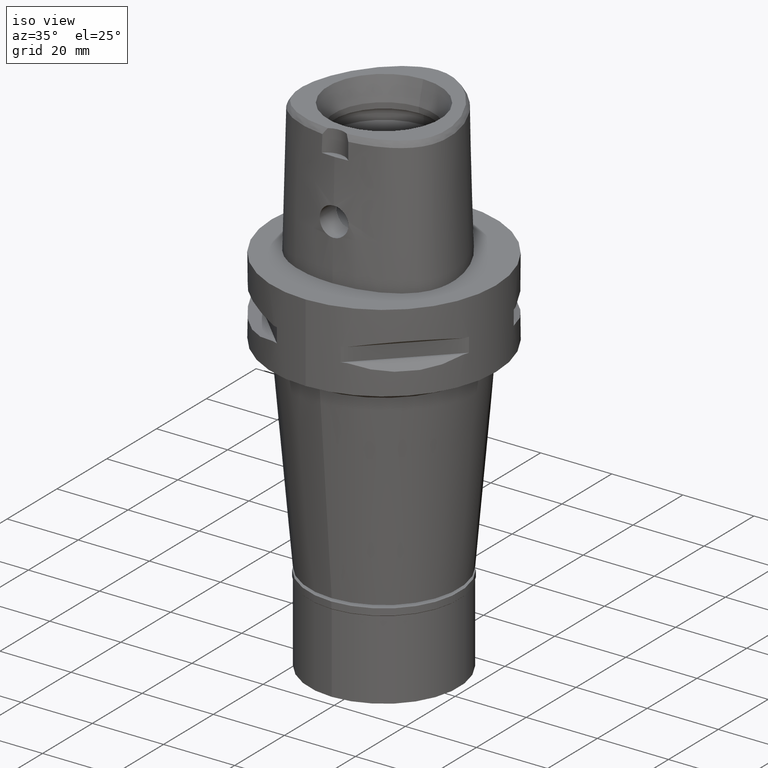
[diagram: clean part render]
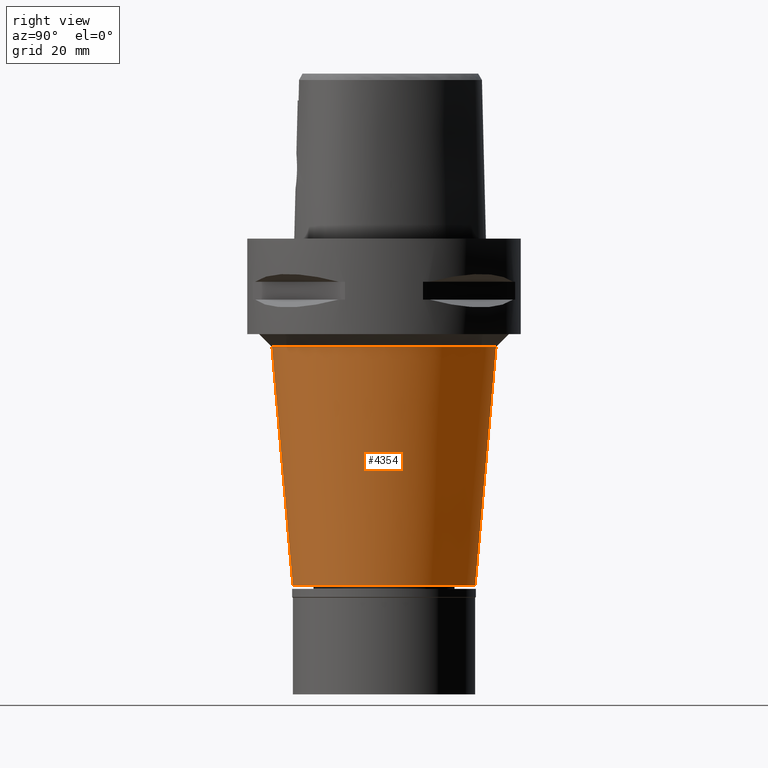
[diagram: tour spotlight — one face highlighted and labeled with its STEP entity id]
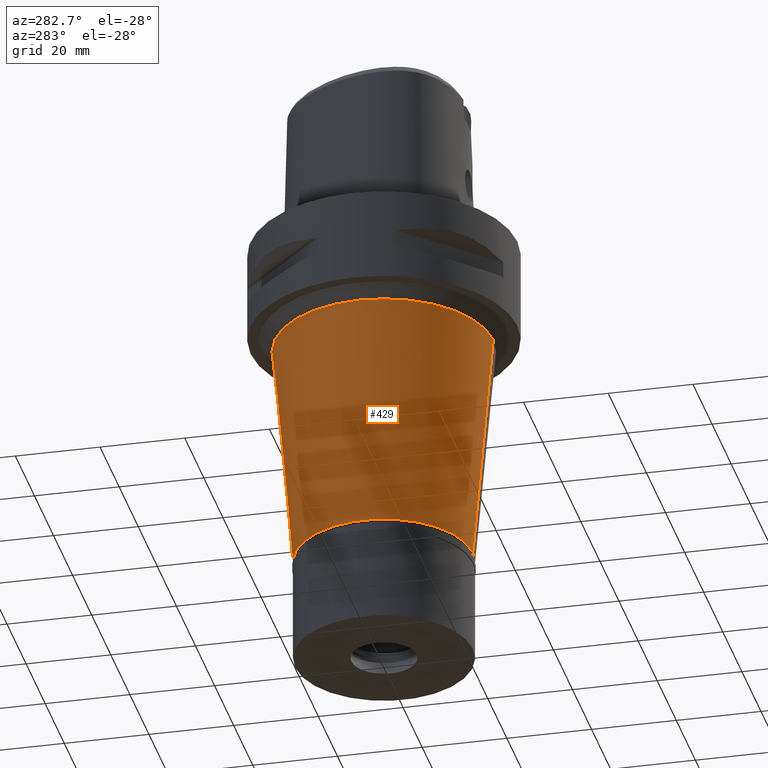
[diagram: tour spotlight — one face highlighted and labeled with its STEP entity id]
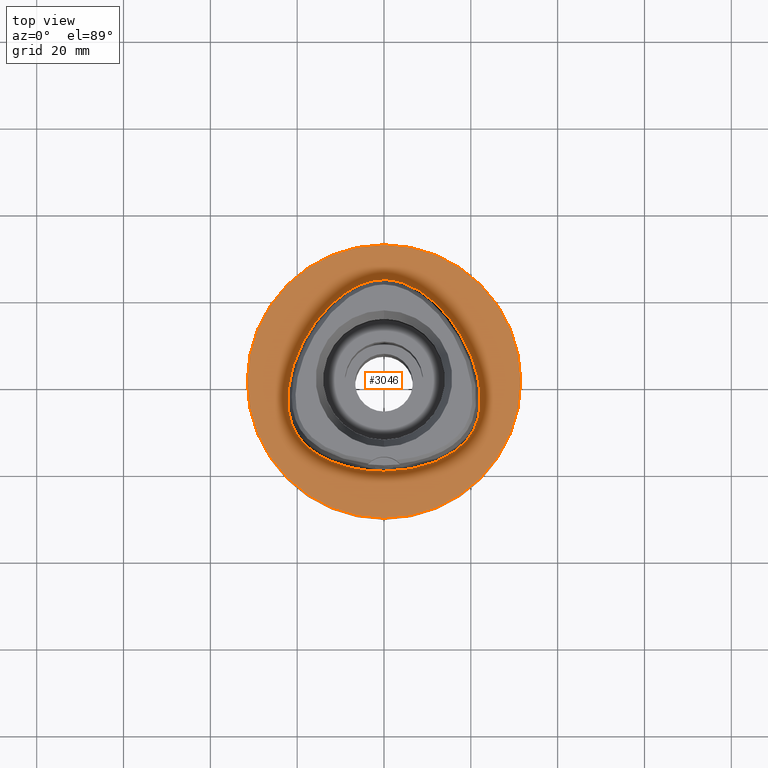
[diagram: tour spotlight — one face highlighted and labeled with its STEP entity id]
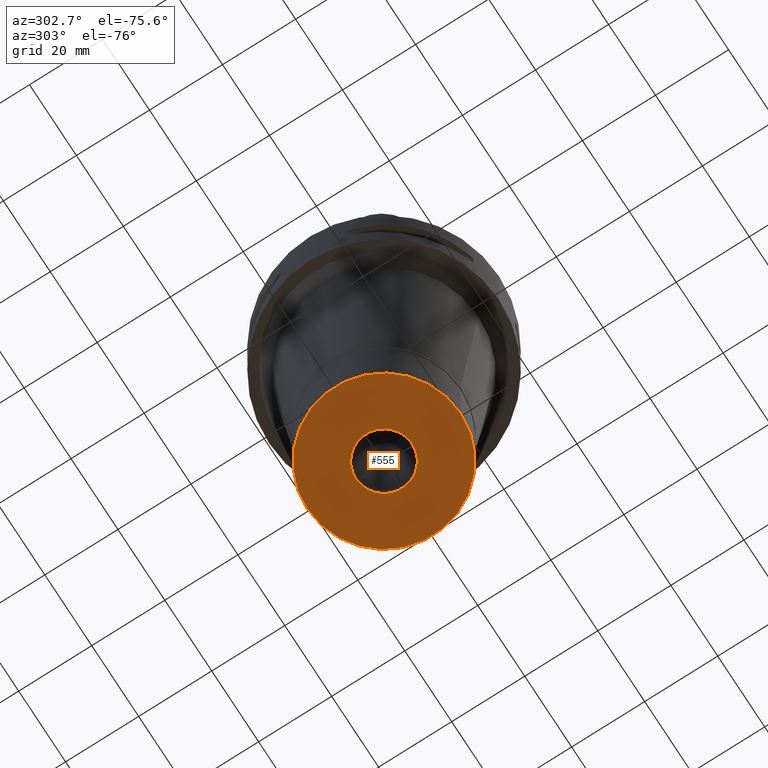
[diagram: tour spotlight — one face highlighted and labeled with its STEP entity id]
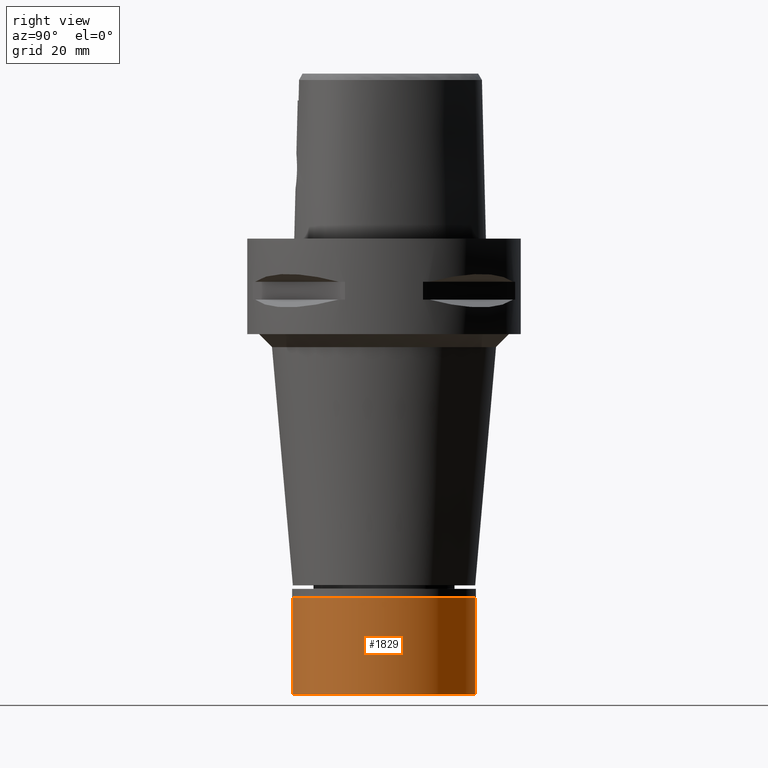
[diagram: tour spotlight — one face highlighted and labeled with its STEP entity id]
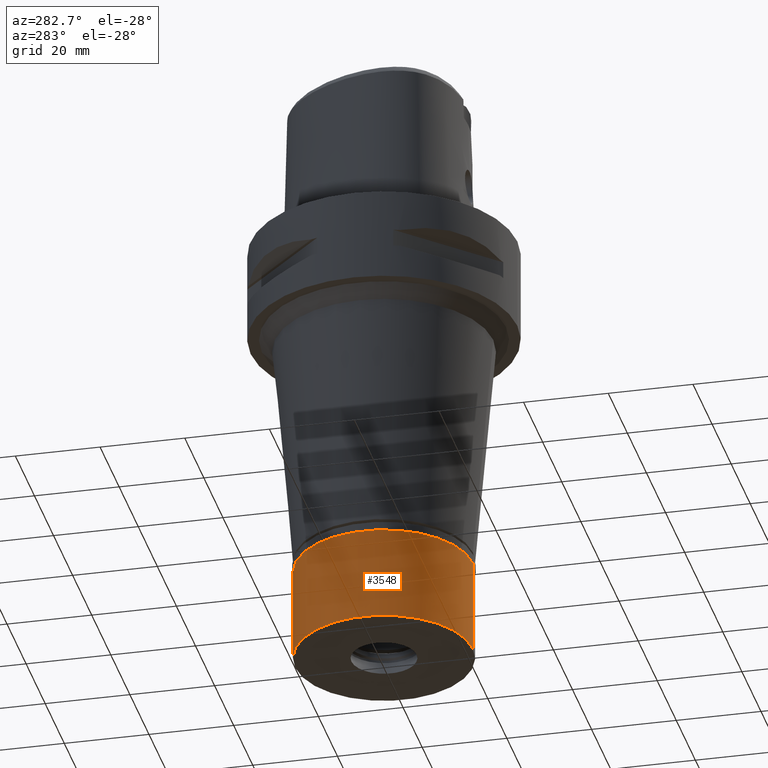
[diagram: tour spotlight — one face highlighted and labeled with its STEP entity id]
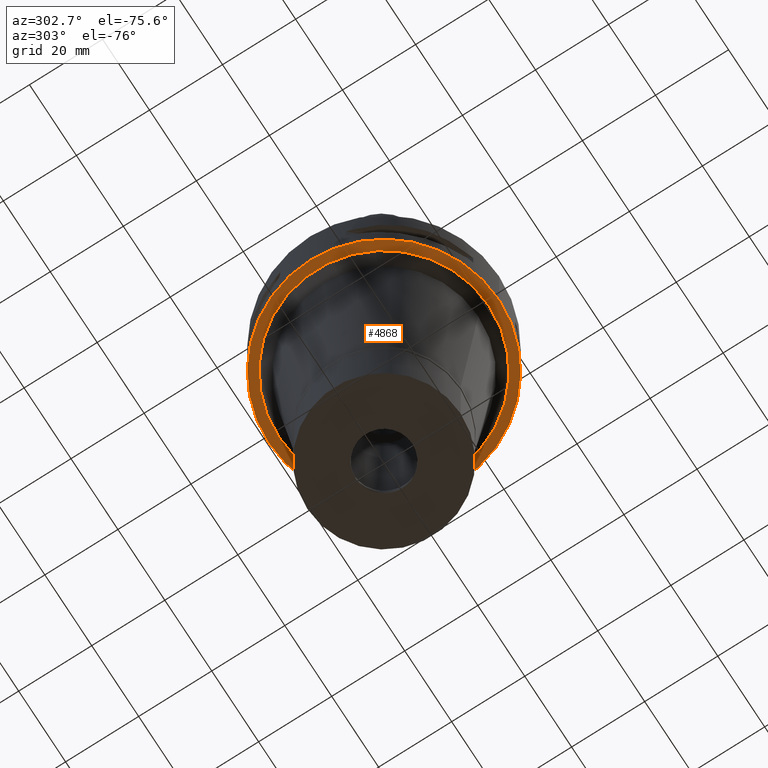
[diagram: tour spotlight — one face highlighted and labeled with its STEP entity id]
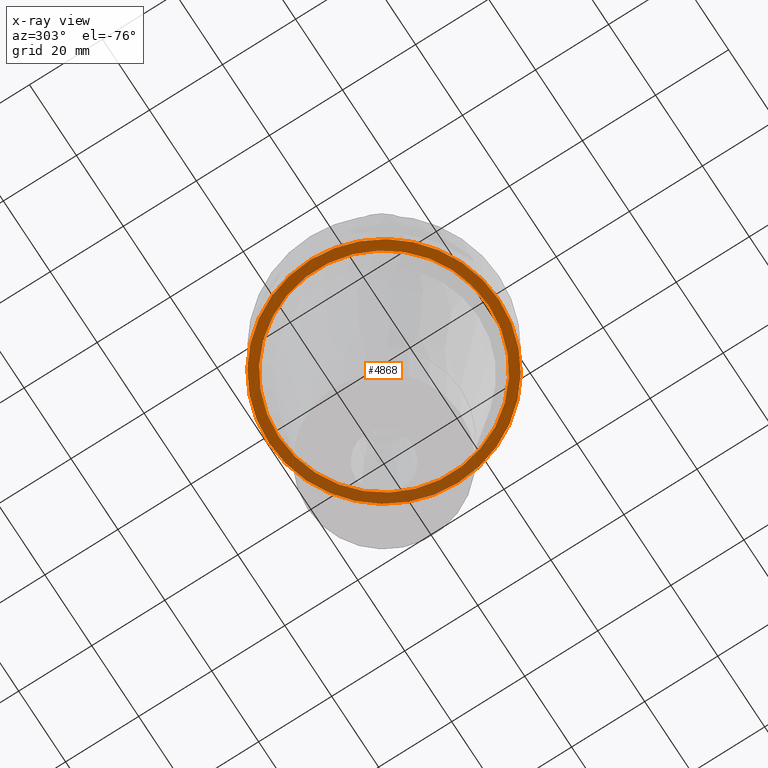
[diagram: x-ray of the same camera — body ghosted, this tour face saturated]
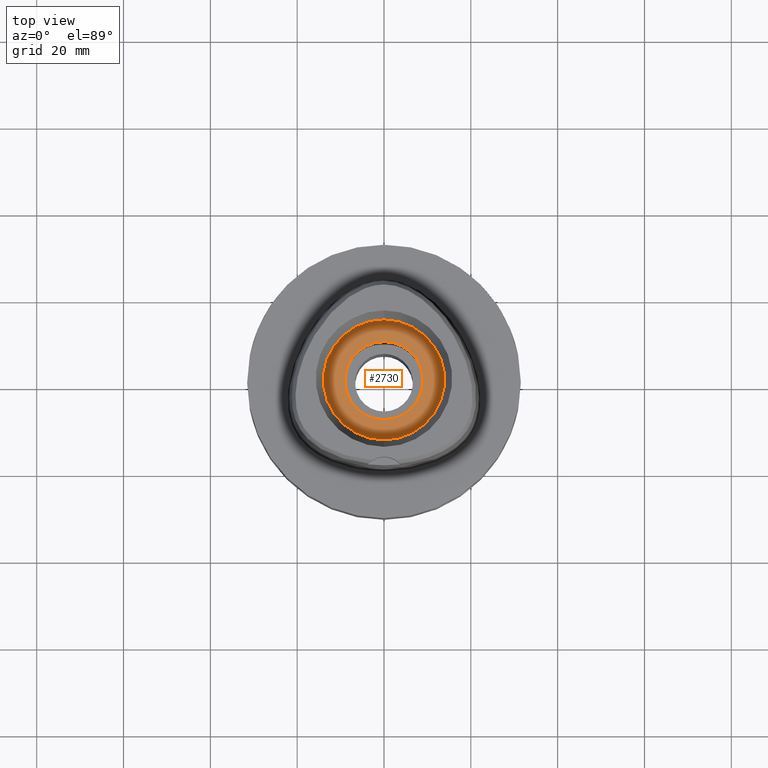
[diagram: tour spotlight — one face highlighted and labeled with its STEP entity id]
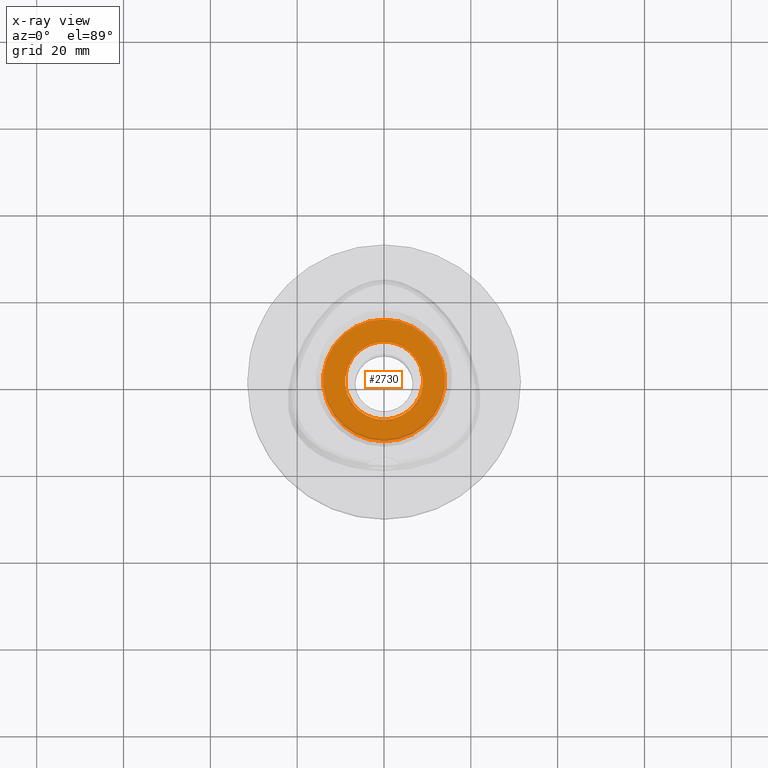
[diagram: x-ray of the same camera — body ghosted, this tour face saturated]
A machine part: a face-by-face anatomy tour. The part has 97 B-rep faces; the first image is the clean iso view, then the 8 largest visible faces are spotlighted one at a time (largest first), each with its STEP entity span.

Face 1 — right view, entity #4354. In plain terms, the highlighted conical surface has half-angle 5 deg.
Definition (entity closure, byte-faithful):
#162 = ORIENTED_EDGE ( 'NONE', *, *, #1592, .T. ) ;
#196 = DIRECTION ( 'NONE',  ( 0.0000000000000000000, 1.000000000000000000, 0.0000000000000000000 ) ) ;
#364 = ORIENTED_EDGE ( 'NONE', *, *, #973, .F. ) ;
#507 = LINE ( 'NONE', #2792, #2187 ) ;
#554 = EDGE_LOOP ( 'NONE', ( #4551, #3085, #162, #364 ) ) ;
#756 = LINE ( 'NONE', #842, #1857 ) ;
#758 = VERTEX_POINT ( 'NONE', #1597 ) ;
#842 = CARTESIAN_POINT ( 'NONE',  ( 0.0000000000000000000, -25.80312762756999945, -25.00000000000000000 ) ) ;
#903 = EDGE_CURVE ( 'NONE', #1946, #1959, #756, .T. ) ;
#973 = EDGE_CURVE ( 'NONE', #4078, #758, #507, .T. ) ;
#1592 = EDGE_CURVE ( 'NONE', #1959, #758, #2961, .T. ) ;
#1597 = CARTESIAN_POINT ( 'NONE',  ( 0.0000000000000000000, 21.00000000000000000, -79.90000000000000568 ) ) ;
#1857 = VECTOR ( 'NONE', #3156, 1000.000000000000000 ) ;
#1946 = VERTEX_POINT ( 'NONE', #4480 ) ;
#1959 = VERTEX_POINT ( 'NONE', #2958 ) ;
#2187 = VECTOR ( 'NONE', #3182, 1000.000000000000000 ) ;
#2266 = DIRECTION ( 'NONE',  ( 0.0000000000000000000, 0.0000000000000000000, 1.000000000000000000 ) ) ;
#2310 = DIRECTION ( 'NONE',  ( 0.0000000000000000000, -1.000000000000000000, 0.0000000000000000000 ) ) ;
#2458 = CARTESIAN_POINT ( 'NONE',  ( 0.0000000000000000000, 25.80312762756999945, -25.00000000000000000 ) ) ;
#2640 = DIRECTION ( 'NONE',  ( 0.0000000000000000000, -1.000000000000000000, 0.0000000000000000000 ) ) ;
#2670 = CARTESIAN_POINT ( 'NONE',  ( 0.0000000000000000000, 0.0000000000000000000, -79.90000000000000568 ) ) ;
#2792 = CARTESIAN_POINT ( 'NONE',  ( 0.0000000000000000000, 25.80312762756999945, -25.00000000000000000 ) ) ;
#2836 = AXIS2_PLACEMENT_3D ( 'NONE', #3727, #3752, #196 ) ;
#2958 = CARTESIAN_POINT ( 'NONE',  ( 0.0000000000000000000, -21.00000000000000000, -79.90000000000000568 ) ) ;
#2961 = CIRCLE ( 'NONE', #4734, 21.00000000000000000 ) ;
#3085 = ORIENTED_EDGE ( 'NONE', *, *, #903, .T. ) ;
#3156 = DIRECTION ( 'NONE',  ( 0.0000000000000000000, 0.08715574274762423468, -0.9961946980917484318 ) ) ;
#3182 = DIRECTION ( 'NONE',  ( 0.0000000000000000000, -0.08715574274762423468, -0.9961946980917484318 ) ) ;
#3280 = FACE_OUTER_BOUND ( 'NONE', #554, .T. ) ;
#3340 = EDGE_CURVE ( 'NONE', #1946, #4078, #4949, .T. ) ;
#3727 = CARTESIAN_POINT ( 'NONE',  ( 0.0000000000000000000, 0.0000000000000000000, -52.44999999999999574 ) ) ;
#3752 = DIRECTION ( 'NONE',  ( 0.0000000000000000000, 0.0000000000000000000, 1.000000000000000000 ) ) ;
#4076 = CARTESIAN_POINT ( 'NONE',  ( 0.0000000000000000000, 0.0000000000000000000, -25.00000000000000000 ) ) ;
#4078 = VERTEX_POINT ( 'NONE', #2458 ) ;
#4354 = ADVANCED_FACE ( 'NONE', ( #3280 ), #4604, .T. ) ;
#4480 = CARTESIAN_POINT ( 'NONE',  ( 0.0000000000000000000, -25.80312762756999945, -25.00000000000000000 ) ) ;
#4551 = ORIENTED_EDGE ( 'NONE', *, *, #3340, .F. ) ;
#4554 = DIRECTION ( 'NONE',  ( 0.0000000000000000000, 0.0000000000000000000, 1.000000000000000000 ) ) ;
#4604 = CONICAL_SURFACE ( 'NONE', #2836, 23.40156381379000194, 0.08726646259969973729 ) ;
#4734 = AXIS2_PLACEMENT_3D ( 'NONE', #2670, #2266, #2310 ) ;
#4874 = AXIS2_PLACEMENT_3D ( 'NONE', #4076, #4554, #2640 ) ;
#4949 = CIRCLE ( 'NONE', #4874, 25.80312762758000034 ) ;

Face 2 — auxiliary view, entity #429. In plain terms, the highlighted conical surface has half-angle 5 deg.
Definition (entity closure, byte-faithful):
#139 = AXIS2_PLACEMENT_3D ( 'NONE', #1388, #1761, #4853 ) ;
#429 = ADVANCED_FACE ( 'NONE', ( #2772 ), #2973, .T. ) ;
#507 = LINE ( 'NONE', #2792, #2187 ) ;
#756 = LINE ( 'NONE', #842, #1857 ) ;
#758 = VERTEX_POINT ( 'NONE', #1597 ) ;
#784 = AXIS2_PLACEMENT_3D ( 'NONE', #1532, #4705, #3846 ) ;
#842 = CARTESIAN_POINT ( 'NONE',  ( 0.0000000000000000000, -25.80312762756999945, -25.00000000000000000 ) ) ;
#903 = EDGE_CURVE ( 'NONE', #1946, #1959, #756, .T. ) ;
#973 = EDGE_CURVE ( 'NONE', #4078, #758, #507, .T. ) ;
#1267 = ORIENTED_EDGE ( 'NONE', *, *, #3275, .T. ) ;
#1388 = CARTESIAN_POINT ( 'NONE',  ( 0.0000000000000000000, 0.0000000000000000000, -25.00000000000000000 ) ) ;
#1501 = EDGE_CURVE ( 'NONE', #1946, #4078, #4500, .T. ) ;
#1515 = ORIENTED_EDGE ( 'NONE', *, *, #903, .F. ) ;
#1532 = CARTESIAN_POINT ( 'NONE',  ( 0.0000000000000000000, 0.0000000000000000000, -52.44999999999999574 ) ) ;
#1597 = CARTESIAN_POINT ( 'NONE',  ( 0.0000000000000000000, 21.00000000000000000, -79.90000000000000568 ) ) ;
#1761 = DIRECTION ( 'NONE',  ( 0.0000000000000000000, 0.0000000000000000000, -1.000000000000000000 ) ) ;
#1857 = VECTOR ( 'NONE', #3156, 1000.000000000000000 ) ;
#1946 = VERTEX_POINT ( 'NONE', #4480 ) ;
#1959 = VERTEX_POINT ( 'NONE', #2958 ) ;
#2187 = VECTOR ( 'NONE', #3182, 1000.000000000000000 ) ;
#2458 = CARTESIAN_POINT ( 'NONE',  ( 0.0000000000000000000, 25.80312762756999945, -25.00000000000000000 ) ) ;
#2479 = CIRCLE ( 'NONE', #3599, 21.00000000000000000 ) ;
#2772 = FACE_OUTER_BOUND ( 'NONE', #4414, .T. ) ;
#2792 = CARTESIAN_POINT ( 'NONE',  ( 0.0000000000000000000, 25.80312762756999945, -25.00000000000000000 ) ) ;
#2958 = CARTESIAN_POINT ( 'NONE',  ( 0.0000000000000000000, -21.00000000000000000, -79.90000000000000568 ) ) ;
#2973 = CONICAL_SURFACE ( 'NONE', #784, 23.40156381379000194, 0.08726646259969973729 ) ;
#3156 = DIRECTION ( 'NONE',  ( 0.0000000000000000000, 0.08715574274762423468, -0.9961946980917484318 ) ) ;
#3182 = DIRECTION ( 'NONE',  ( 0.0000000000000000000, -0.08715574274762423468, -0.9961946980917484318 ) ) ;
#3275 = EDGE_CURVE ( 'NONE', #758, #1959, #2479, .T. ) ;
#3321 = CARTESIAN_POINT ( 'NONE',  ( 0.0000000000000000000, 0.0000000000000000000, -79.90000000000000568 ) ) ;
#3524 = ORIENTED_EDGE ( 'NONE', *, *, #1501, .T. ) ;
#3599 = AXIS2_PLACEMENT_3D ( 'NONE', #3321, #3764, #4940 ) ;
#3724 = ORIENTED_EDGE ( 'NONE', *, *, #973, .T. ) ;
#3764 = DIRECTION ( 'NONE',  ( 0.0000000000000000000, 0.0000000000000000000, 1.000000000000000000 ) ) ;
#3846 = DIRECTION ( 'NONE',  ( 0.0000000000000000000, 1.000000000000000000, 0.0000000000000000000 ) ) ;
#4078 = VERTEX_POINT ( 'NONE', #2458 ) ;
#4414 = EDGE_LOOP ( 'NONE', ( #1267, #1515, #3524, #3724 ) ) ;
#4480 = CARTESIAN_POINT ( 'NONE',  ( 0.0000000000000000000, -25.80312762756999945, -25.00000000000000000 ) ) ;
#4500 = CIRCLE ( 'NONE', #139, 25.80312762756999945 ) ;
#4705 = DIRECTION ( 'NONE',  ( 0.0000000000000000000, 0.0000000000000000000, 1.000000000000000000 ) ) ;
#4853 = DIRECTION ( 'NONE',  ( 0.0000000000000000000, -1.000000000000000000, 0.0000000000000000000 ) ) ;
#4940 = DIRECTION ( 'NONE',  ( 0.0000000000000000000, 1.000000000000000000, 0.0000000000000000000 ) ) ;

Face 3 — top view, entity #3046. In plain terms, the highlighted planar face has unit normal (0, 0, -1).
Definition (entity closure, byte-faithful):
#9 = VERTEX_POINT ( 'NONE', #4185 ) ;
#29 = CARTESIAN_POINT ( 'NONE',  ( 22.05732876008676868, -6.847636721172932539, -6.785209974175671066E-07 ) ) ;
#56 = CARTESIAN_POINT ( 'NONE',  ( 5.098437023615106867, 22.52602540643902884, -6.785209974175671066E-07 ) ) ;
#131 = VERTEX_POINT ( 'NONE', #4362 ) ;
#132 = CARTESIAN_POINT ( 'NONE',  ( 19.64947367238386633, -12.82525391623904731, -6.785209974175671066E-07 ) ) ;
#136 = EDGE_LOOP ( 'NONE', ( #456, #2271 ) ) ;
#279 = CIRCLE ( 'NONE', #2231, 31.50000000000000000 ) ;
#311 = CARTESIAN_POINT ( 'NONE',  ( -5.098437017462684295, 22.52602539107448010, -1.923528933247924122E-08 ) ) ;
#401 = CARTESIAN_POINT ( 'NONE',  ( -1.042620435539000038E-11, -20.67499999999999716, 1.260843281632999955E-13 ) ) ;
#413 = CARTESIAN_POINT ( 'NONE',  ( -1.042620435539000038E-11, -20.67499999999999716, 1.260843281632999955E-13 ) ) ;
#456 = ORIENTED_EDGE ( 'NONE', *, *, #3170, .F. ) ;
#468 = CARTESIAN_POINT ( 'NONE',  ( 5.537052861617000444E-11, 23.47499999999000053, 1.231977482991999938E-13 ) ) ;
#646 = FACE_BOUND ( 'NONE', #2500, .T. ) ;
#670 = PLANE ( 'NONE',  #2068 ) ;
#695 = CARTESIAN_POINT ( 'NONE',  ( 5.537052861617000444E-11, 23.47499999999000053, 1.231977482991999938E-13 ) ) ;
#833 = CARTESIAN_POINT ( 'NONE',  ( -21.55524826055177101, -8.996025390762291352, -1.923528933247924122E-08 ) ) ;
#844 = CARTESIAN_POINT ( 'NONE',  ( 20.93173253763973918, -10.60431641315681617, -6.785209974175671066E-07 ) ) ;
#1037 = DIRECTION ( 'NONE',  ( 0.0000000000000000000, -1.000000000000000000, 0.0000000000000000000 ) ) ;
#1083 = CARTESIAN_POINT ( 'NONE',  ( -14.40795638994774031, 15.64093750030547447, -1.923528933247924122E-08 ) ) ;
#1159 = CARTESIAN_POINT ( 'NONE',  ( -11.23259756744138116, -18.89324218795826837, -1.923528933247924122E-08 ) ) ;
#1303 = CARTESIAN_POINT ( 'NONE',  ( 18.06826690003115488, 10.43171875852642039, -6.785209974175671066E-07 ) ) ;
#1488 = CARTESIAN_POINT ( 'NONE',  ( -21.97832647834017550, -0.2810937499159023023, -1.923528933247924122E-08 ) ) ;
#1608 = CARTESIAN_POINT ( 'NONE',  ( 2.564517730442541499, 23.29328126670213805, -6.785209974175671066E-07 ) ) ;
#1635 = CARTESIAN_POINT ( 'NONE',  ( 7.571159442944739304, 21.31457032718531863, -6.785209974175671066E-07 ) ) ;
#1687 = CARTESIAN_POINT ( 'NONE',  ( 2.113823674074862602, -20.67500001696187439, -6.785209974175671066E-07 ) ) ;
#1801 = EDGE_CURVE ( 'NONE', #131, #4152, #3026, .T. ) ;
#1807 = CARTESIAN_POINT ( 'NONE',  ( 0.0000000000000000000, 31.50000000000000000, 0.0000000000000000000 ) ) ;
#1869 = CARTESIAN_POINT ( 'NONE',  ( -18.06826688568393280, 10.43171875024030015, -1.923528933247924122E-08 ) ) ;
#1894 = VERTEX_POINT ( 'NONE', #1807 ) ;
#2008 = CARTESIAN_POINT ( 'NONE',  ( 6.341471022225618981, -20.29812501679269943, -6.785209974175672125E-07 ) ) ;
#2040 = CARTESIAN_POINT ( 'NONE',  ( 20.74942742484284253, 4.657187505782932391, -6.785209974175671066E-07 ) ) ;
#2044 = ORIENTED_EDGE ( 'NONE', *, *, #1801, .F. ) ;
#2068 = AXIS2_PLACEMENT_3D ( 'NONE', #2200, #3726, #4043 ) ;
#2200 = CARTESIAN_POINT ( 'NONE',  ( 0.0000000000000000000, 1.224646799146999965E-14, 0.0000000000000000000 ) ) ;
#2225 = DIRECTION ( 'NONE',  ( 0.0000000000000000000, 0.0000000000000000000, -1.000000000000000000 ) ) ;
#2231 = AXIS2_PLACEMENT_3D ( 'NONE', #4179, #3847, #3420 ) ;
#2245 = CARTESIAN_POINT ( 'NONE',  ( -0.8548392423346261593, 23.47500000048537672, -1.923528933247924122E-08 ) ) ;
#2271 = ORIENTED_EDGE ( 'NONE', *, *, #4722, .F. ) ;
#2362 = CARTESIAN_POINT ( 'NONE',  ( 11.23259757310570883, -18.89324220352508021, -6.785209974175671066E-07 ) ) ;
#2418 = CARTESIAN_POINT ( 'NONE',  ( 10.74572892155648418, 19.17433595056201412, -6.785209974175671066E-07 ) ) ;
#2448 = CARTESIAN_POINT ( 'NONE',  ( 18.56841066377555904, -14.16937989451306201, -6.785209974175671066E-07 ) ) ;
#2500 = EDGE_LOOP ( 'NONE', ( #3119, #2044 ) ) ;
#2627 = CARTESIAN_POINT ( 'NONE',  ( -22.24453907902907801, -4.100468749996694307, -1.923528933247924122E-08 ) ) ;
#2758 = CARTESIAN_POINT ( 'NONE',  ( -2.113823673093066180, -20.67500000048298148, -1.923528933247924122E-08 ) ) ;
#2975 = CARTESIAN_POINT ( 'NONE',  ( 0.0000000000000000000, 1.284348330606000068E-14, 0.0000000000000000000 ) ) ;
#3026 = B_SPLINE_CURVE_WITH_KNOTS ( 'NONE', 3,
 ( #401, #1687, #2008, #2362, #3103, #4653, #2448, #132, #3130, #844, #3185, #29, #3903, #4353, #2040, #1303, #3517, #2418, #1635, #56, #1608, #3542, #4756 ),
 .UNSPECIFIED., .F., .F.,
 ( 4, 1, 1, 1, 1, 1, 1, 1, 1, 1, 1, 1, 1, 1, 1, 1, 1, 1, 1, 1, 4 ),
 ( 0.0000000000000000000, 0.08333333333343000138, 0.1666666666668000230, 0.2083333333333000081, 0.2500000000000000000, 0.2916666666666999919, 0.3125000000000000000, 0.3333333333333000081, 0.3541666666666999919, 0.3750000000000000000, 0.4166666666666000163, 0.4583333333332000326, 0.4999999999998999689, 0.5833333333332000326, 0.6666666666664999852, 0.7499999999998000488, 0.8333333333329999704, 0.8749999999997000177, 0.9166666666664000651, 0.9583333333329999704, 1.000000000000000000 ),
 .UNSPECIFIED. ) ;
#3044 = CARTESIAN_POINT ( 'NONE',  ( -19.64947365903293175, -12.82525390652701169, -1.923528933247924122E-08 ) ) ;
#3046 = ADVANCED_FACE ( 'NONE', ( #4108, #646 ), #670, .F. ) ;
#3103 = CARTESIAN_POINT ( 'NONE',  ( 14.67337965261984856, -17.21410157728029944, -6.785209974175671066E-07 ) ) ;
#3119 = ORIENTED_EDGE ( 'NONE', *, *, #4458, .F. ) ;
#3130 = CARTESIAN_POINT ( 'NONE',  ( 20.34961800028912293, -11.74885743036716335, -6.785209974175671066E-07 ) ) ;
#3170 = EDGE_CURVE ( 'NONE', #1894, #9, #279, .T. ) ;
#3185 = CARTESIAN_POINT ( 'NONE',  ( 21.55524827641113461, -8.996025395474692488, -6.785209974175671066E-07 ) ) ;
#3401 = CARTESIAN_POINT ( 'NONE',  ( -20.74942740924745621, 4.657187500164402749, -1.923528933247924122E-08 ) ) ;
#3420 = DIRECTION ( 'NONE',  ( 0.0000000000000000000, 1.000000000000000000, 0.0000000000000000000 ) ) ;
#3432 = CARTESIAN_POINT ( 'NONE',  ( -20.34961798598837390, -11.74885742210780570, -1.923528933247924122E-08 ) ) ;
#3517 = CARTESIAN_POINT ( 'NONE',  ( 14.40795640261600497, 15.64093751101231966, -6.785209974175671066E-07 ) ) ;
#3542 = CARTESIAN_POINT ( 'NONE',  ( 0.8548392435103955300, 23.47500001696676719, -6.785209974175671066E-07 ) ) ;
#3726 = DIRECTION ( 'NONE',  ( 0.0000000000000000000, 0.0000000000000000000, -1.000000000000000000 ) ) ;
#3775 = CARTESIAN_POINT ( 'NONE',  ( -2.564517727055826590, 23.29328125047005571, -1.923528933247924122E-08 ) ) ;
#3847 = DIRECTION ( 'NONE',  ( 0.0000000000000000000, 0.0000000000000000000, -1.000000000000000000 ) ) ;
#3903 = CARTESIAN_POINT ( 'NONE',  ( 22.24453909555905895, -4.100468749900335830, -6.785209974175671066E-07 ) ) ;
#4043 = DIRECTION ( 'NONE',  ( 0.0000000000000000000, -1.000000000000000000, 0.0000000000000000000 ) ) ;
#4108 = FACE_OUTER_BOUND ( 'NONE', #136, .T. ) ;
#4152 = VERTEX_POINT ( 'NONE', #468 ) ;
#4156 = CARTESIAN_POINT ( 'NONE',  ( -10.74572891090726934, 19.17433593786605073, -1.923528933247924122E-08 ) ) ;
#4179 = CARTESIAN_POINT ( 'NONE',  ( 0.0000000000000000000, 1.284348330606000068E-14, 0.0000000000000000000 ) ) ;
#4185 = CARTESIAN_POINT ( 'NONE',  ( 0.0000000000000000000, -31.50000000000000000, 0.0000000000000000000 ) ) ;
#4190 = CARTESIAN_POINT ( 'NONE',  ( -18.56841065177361472, -14.16937988314586683, -1.923528933247924122E-08 ) ) ;
#4237 = CARTESIAN_POINT ( 'NONE',  ( -6.341471019296806233, -20.29812500048504731, -1.923528933247924122E-08 ) ) ;
#4274 = CIRCLE ( 'NONE', #4987, 31.50000000000000000 ) ;
#4289 = CARTESIAN_POINT ( 'NONE',  ( -20.93173252255332883, -10.60431640645471951, -1.923528933247924122E-08 ) ) ;
#4353 = CARTESIAN_POINT ( 'NONE',  ( 21.97832649466312915, -0.2810937470323582321, -6.785209974175671066E-07 ) ) ;
#4362 = CARTESIAN_POINT ( 'NONE',  ( -1.042620435539000038E-11, -20.67499999999999716, 1.260843281632999955E-13 ) ) ;
#4458 = EDGE_CURVE ( 'NONE', #4152, #131, #4799, .T. ) ;
#4538 = CARTESIAN_POINT ( 'NONE',  ( -7.571159434594514792, 21.31457031291555282, -1.923528933247924122E-08 ) ) ;
#4573 = CARTESIAN_POINT ( 'NONE',  ( -14.67337964443546205, -17.21410156292203553, -1.923528933247924122E-08 ) ) ;
#4653 = CARTESIAN_POINT ( 'NONE',  ( 16.95889173646760284, -15.67838868527016771, -6.785209974175671066E-07 ) ) ;
#4722 = EDGE_CURVE ( 'NONE', #9, #1894, #4274, .T. ) ;
#4756 = CARTESIAN_POINT ( 'NONE',  ( 5.537052861617000444E-11, 23.47499999999000053, 1.231977482991999938E-13 ) ) ;
#4799 = B_SPLINE_CURVE_WITH_KNOTS ( 'NONE', 3,
 ( #695, #2245, #3775, #311, #4538, #4156, #1083, #1869, #3401, #1488, #2627, #4928, #833, #4289, #3432, #3044, #4190, #4959, #4573, #1159, #4237, #2758, #413 ),
 .UNSPECIFIED., .F., .F.,
 ( 4, 1, 1, 1, 1, 1, 1, 1, 1, 1, 1, 1, 1, 1, 1, 1, 1, 1, 1, 1, 4 ),
 ( 0.0000000000000000000, 0.04166666666751999565, 0.08333333333413001087, 0.1250000000007999990, 0.1666666666674000152, 0.2500000000006000200, 0.3333333333337999971, 0.4166666666671000052, 0.5000000000002999823, 0.5416666666670000296, 0.5833333333335000148, 0.6250000000001999512, 0.6458333333335000148, 0.6666666666667999674, 0.6875000000001000311, 0.7083333333333999837, 0.7500000000000000000, 0.7916666666667000474, 0.8333333333333000637, 0.9166666666666000163, 1.000000000000000000 ),
 .UNSPECIFIED. ) ;
#4928 = CARTESIAN_POINT ( 'NONE',  ( -22.05732874369764929, -6.847636718818163715, -1.923528933247924122E-08 ) ) ;
#4959 = CARTESIAN_POINT ( 'NONE',  ( -16.95889172623121155, -15.67838867224829258, -1.923528933247924122E-08 ) ) ;
#4987 = AXIS2_PLACEMENT_3D ( 'NONE', #2975, #2225, #1037 ) ;

Face 4 — auxiliary view, entity #555. In plain terms, the highlighted planar face has unit normal (0, 0, -1).
Definition (entity closure, byte-faithful):
#7 = CARTESIAN_POINT ( 'NONE',  ( 0.0000000000000000000, 0.0000000000000000000, -24.29999999999999716 ) ) ;
#345 = DIRECTION ( 'NONE',  ( 0.0000000000000000000, 0.0000000000000000000, 1.000000000000000000 ) ) ;
#374 = DIRECTION ( 'NONE',  ( 0.0000000000000000000, -1.000000000000000000, 0.0000000000000000000 ) ) ;
#436 = AXIS2_PLACEMENT_3D ( 'NONE', #4398, #1678, #3617 ) ;
#555 = ADVANCED_FACE ( 'NONE', ( #3197, #1158 ), #4311, .T. ) ;
#763 = CIRCLE ( 'NONE', #4155, 21.00000000000000000 ) ;
#1016 = DIRECTION ( 'NONE',  ( 0.0000000000000000000, -1.000000000000000000, 0.0000000000000000000 ) ) ;
#1158 = FACE_BOUND ( 'NONE', #1872, .T. ) ;
#1333 = CIRCLE ( 'NONE', #4164, 7.700000000000000178 ) ;
#1443 = CARTESIAN_POINT ( 'NONE',  ( 0.0000000000000000000, 0.0000000000000000000, -24.29999999999999716 ) ) ;
#1464 = DIRECTION ( 'NONE',  ( 0.0000000000000000000, 0.0000000000000000000, 1.000000000000000000 ) ) ;
#1531 = AXIS2_PLACEMENT_3D ( 'NONE', #2729, #2755, #2051 ) ;
#1579 = ORIENTED_EDGE ( 'NONE', *, *, #3173, .F. ) ;
#1678 = DIRECTION ( 'NONE',  ( 0.0000000000000000000, 0.0000000000000000000, -1.000000000000000000 ) ) ;
#1699 = CARTESIAN_POINT ( 'NONE',  ( 0.0000000000000000000, -21.00000000000000000, -24.29999999999999716 ) ) ;
#1827 = CIRCLE ( 'NONE', #436, 7.700000000000000178 ) ;
#1872 = EDGE_LOOP ( 'NONE', ( #3983, #3861 ) ) ;
#1923 = CARTESIAN_POINT ( 'NONE',  ( 0.0000000000000000000, 0.0000000000000000000, -24.29999999999999716 ) ) ;
#1937 = EDGE_LOOP ( 'NONE', ( #4007, #1579 ) ) ;
#1987 = CIRCLE ( 'NONE', #4089, 21.00000000000000000 ) ;
#2051 = DIRECTION ( 'NONE',  ( 0.0000000000000000000, -1.000000000000000000, 0.0000000000000000000 ) ) ;
#2126 = EDGE_CURVE ( 'NONE', #3018, #4588, #1987, .T. ) ;
#2237 = DIRECTION ( 'NONE',  ( 0.0000000000000000000, 1.000000000000000000, 0.0000000000000000000 ) ) ;
#2316 = CARTESIAN_POINT ( 'NONE',  ( 0.0000000000000000000, -7.700000000000000178, -24.29999999999999716 ) ) ;
#2636 = EDGE_CURVE ( 'NONE', #4915, #4330, #1333, .T. ) ;
#2729 = CARTESIAN_POINT ( 'NONE',  ( 0.0000000000000000000, 0.0000000000000000000, -24.29999999999999716 ) ) ;
#2755 = DIRECTION ( 'NONE',  ( 0.0000000000000000000, 0.0000000000000000000, -1.000000000000000000 ) ) ;
#3018 = VERTEX_POINT ( 'NONE', #3042 ) ;
#3042 = CARTESIAN_POINT ( 'NONE',  ( 0.0000000000000000000, 21.00000000000000000, -24.29999999999999716 ) ) ;
#3173 = EDGE_CURVE ( 'NONE', #4588, #3018, #763, .T. ) ;
#3197 = FACE_OUTER_BOUND ( 'NONE', #1937, .T. ) ;
#3332 = CARTESIAN_POINT ( 'NONE',  ( 0.0000000000000000000, 7.700000000000000178, -24.29999999999999716 ) ) ;
#3363 = DIRECTION ( 'NONE',  ( 0.0000000000000000000, 0.0000000000000000000, -1.000000000000000000 ) ) ;
#3480 = EDGE_CURVE ( 'NONE', #4330, #4915, #1827, .T. ) ;
#3617 = DIRECTION ( 'NONE',  ( 0.0000000000000000000, 1.000000000000000000, 0.0000000000000000000 ) ) ;
#3861 = ORIENTED_EDGE ( 'NONE', *, *, #2636, .F. ) ;
#3983 = ORIENTED_EDGE ( 'NONE', *, *, #3480, .F. ) ;
#4007 = ORIENTED_EDGE ( 'NONE', *, *, #2126, .F. ) ;
#4089 = AXIS2_PLACEMENT_3D ( 'NONE', #1923, #345, #2237 ) ;
#4155 = AXIS2_PLACEMENT_3D ( 'NONE', #7, #1464, #374 ) ;
#4164 = AXIS2_PLACEMENT_3D ( 'NONE', #1443, #3363, #1016 ) ;
#4311 = PLANE ( 'NONE',  #1531 ) ;
#4330 = VERTEX_POINT ( 'NONE', #3332 ) ;
#4398 = CARTESIAN_POINT ( 'NONE',  ( 0.0000000000000000000, 0.0000000000000000000, -24.29999999999999716 ) ) ;
#4588 = VERTEX_POINT ( 'NONE', #1699 ) ;
#4915 = VERTEX_POINT ( 'NONE', #2316 ) ;

Face 5 — right view, entity #1829. In plain terms, the highlighted cylindrical surface (partial cylindrical patch) has radius 21 mm, axis along (0, 0, -1).
Definition (entity closure, byte-faithful):
#7 = CARTESIAN_POINT ( 'NONE',  ( 0.0000000000000000000, 0.0000000000000000000, -24.29999999999999716 ) ) ;
#43 = DIRECTION ( 'NONE',  ( 0.0000000000000000000, 0.0000000000000000000, -1.000000000000000000 ) ) ;
#68 = CARTESIAN_POINT ( 'NONE',  ( 0.0000000000000000000, -21.00000000000000000, -2.000000000000000000 ) ) ;
#154 = VECTOR ( 'NONE', #43, 1000.000000000000000 ) ;
#328 = DIRECTION ( 'NONE',  ( 0.0000000000000000000, 1.000000000000000000, 0.0000000000000000000 ) ) ;
#374 = DIRECTION ( 'NONE',  ( 0.0000000000000000000, -1.000000000000000000, 0.0000000000000000000 ) ) ;
#497 = LINE ( 'NONE', #68, #154 ) ;
#710 = CARTESIAN_POINT ( 'NONE',  ( 0.0000000000000000000, 0.0000000000000000000, -2.000000000000000000 ) ) ;
#732 = EDGE_CURVE ( 'NONE', #3933, #4588, #497, .T. ) ;
#763 = CIRCLE ( 'NONE', #4155, 21.00000000000000000 ) ;
#863 = LINE ( 'NONE', #2809, #3515 ) ;
#1179 = EDGE_CURVE ( 'NONE', #4566, #3933, #4751, .T. ) ;
#1464 = DIRECTION ( 'NONE',  ( 0.0000000000000000000, 0.0000000000000000000, 1.000000000000000000 ) ) ;
#1660 = DIRECTION ( 'NONE',  ( 0.0000000000000000000, -1.000000000000000000, 0.0000000000000000000 ) ) ;
#1699 = CARTESIAN_POINT ( 'NONE',  ( 0.0000000000000000000, -21.00000000000000000, -24.29999999999999716 ) ) ;
#1829 = ADVANCED_FACE ( 'NONE', ( #3955 ), #1958, .T. ) ;
#1958 = CYLINDRICAL_SURFACE ( 'NONE', #2873, 21.00000000000000000 ) ;
#2142 = EDGE_LOOP ( 'NONE', ( #3397, #3665, #3295, #3108 ) ) ;
#2335 = AXIS2_PLACEMENT_3D ( 'NONE', #710, #3054, #328 ) ;
#2492 = EDGE_CURVE ( 'NONE', #4566, #3018, #863, .T. ) ;
#2809 = CARTESIAN_POINT ( 'NONE',  ( 0.0000000000000000000, 21.00000000000000000, -2.000000000000000000 ) ) ;
#2873 = AXIS2_PLACEMENT_3D ( 'NONE', #4300, #3984, #1660 ) ;
#3018 = VERTEX_POINT ( 'NONE', #3042 ) ;
#3042 = CARTESIAN_POINT ( 'NONE',  ( 0.0000000000000000000, 21.00000000000000000, -24.29999999999999716 ) ) ;
#3054 = DIRECTION ( 'NONE',  ( 0.0000000000000000000, 0.0000000000000000000, -1.000000000000000000 ) ) ;
#3108 = ORIENTED_EDGE ( 'NONE', *, *, #2492, .F. ) ;
#3173 = EDGE_CURVE ( 'NONE', #4588, #3018, #763, .T. ) ;
#3295 = ORIENTED_EDGE ( 'NONE', *, *, #3173, .T. ) ;
#3397 = ORIENTED_EDGE ( 'NONE', *, *, #1179, .T. ) ;
#3430 = CARTESIAN_POINT ( 'NONE',  ( 0.0000000000000000000, -21.00000000000000000, -2.000000000000000000 ) ) ;
#3477 = CARTESIAN_POINT ( 'NONE',  ( 0.0000000000000000000, 21.00000000000000000, -2.000000000000000000 ) ) ;
#3515 = VECTOR ( 'NONE', #4026, 1000.000000000000000 ) ;
#3665 = ORIENTED_EDGE ( 'NONE', *, *, #732, .T. ) ;
#3933 = VERTEX_POINT ( 'NONE', #3430 ) ;
#3955 = FACE_OUTER_BOUND ( 'NONE', #2142, .T. ) ;
#3984 = DIRECTION ( 'NONE',  ( 0.0000000000000000000, 0.0000000000000000000, -1.000000000000000000 ) ) ;
#4026 = DIRECTION ( 'NONE',  ( 0.0000000000000000000, 0.0000000000000000000, -1.000000000000000000 ) ) ;
#4155 = AXIS2_PLACEMENT_3D ( 'NONE', #7, #1464, #374 ) ;
#4300 = CARTESIAN_POINT ( 'NONE',  ( 0.0000000000000000000, 0.0000000000000000000, 0.0000000000000000000 ) ) ;
#4566 = VERTEX_POINT ( 'NONE', #3477 ) ;
#4588 = VERTEX_POINT ( 'NONE', #1699 ) ;
#4751 = CIRCLE ( 'NONE', #2335, 21.00000000000000000 ) ;

Face 6 — auxiliary view, entity #3548. In plain terms, the highlighted cylindrical surface (partial cylindrical patch) has radius 21 mm, axis along (0, 0, -1).
Definition (entity closure, byte-faithful):
#43 = DIRECTION ( 'NONE',  ( 0.0000000000000000000, 0.0000000000000000000, -1.000000000000000000 ) ) ;
#68 = CARTESIAN_POINT ( 'NONE',  ( 0.0000000000000000000, -21.00000000000000000, -2.000000000000000000 ) ) ;
#134 = ORIENTED_EDGE ( 'NONE', *, *, #3077, .T. ) ;
#154 = VECTOR ( 'NONE', #43, 1000.000000000000000 ) ;
#217 = DIRECTION ( 'NONE',  ( 0.0000000000000000000, 0.0000000000000000000, -1.000000000000000000 ) ) ;
#345 = DIRECTION ( 'NONE',  ( 0.0000000000000000000, 0.0000000000000000000, 1.000000000000000000 ) ) ;
#370 = ORIENTED_EDGE ( 'NONE', *, *, #732, .F. ) ;
#497 = LINE ( 'NONE', #68, #154 ) ;
#732 = EDGE_CURVE ( 'NONE', #3933, #4588, #497, .T. ) ;
#863 = LINE ( 'NONE', #2809, #3515 ) ;
#1346 = CARTESIAN_POINT ( 'NONE',  ( 0.0000000000000000000, 0.0000000000000000000, 0.0000000000000000000 ) ) ;
#1699 = CARTESIAN_POINT ( 'NONE',  ( 0.0000000000000000000, -21.00000000000000000, -24.29999999999999716 ) ) ;
#1705 = FACE_OUTER_BOUND ( 'NONE', #4776, .T. ) ;
#1766 = DIRECTION ( 'NONE',  ( 0.0000000000000000000, -1.000000000000000000, 0.0000000000000000000 ) ) ;
#1923 = CARTESIAN_POINT ( 'NONE',  ( 0.0000000000000000000, 0.0000000000000000000, -24.29999999999999716 ) ) ;
#1987 = CIRCLE ( 'NONE', #4089, 21.00000000000000000 ) ;
#2126 = EDGE_CURVE ( 'NONE', #3018, #4588, #1987, .T. ) ;
#2237 = DIRECTION ( 'NONE',  ( 0.0000000000000000000, 1.000000000000000000, 0.0000000000000000000 ) ) ;
#2449 = ORIENTED_EDGE ( 'NONE', *, *, #2126, .T. ) ;
#2492 = EDGE_CURVE ( 'NONE', #4566, #3018, #863, .T. ) ;
#2809 = CARTESIAN_POINT ( 'NONE',  ( 0.0000000000000000000, 21.00000000000000000, -2.000000000000000000 ) ) ;
#3018 = VERTEX_POINT ( 'NONE', #3042 ) ;
#3027 = AXIS2_PLACEMENT_3D ( 'NONE', #1346, #4053, #4523 ) ;
#3042 = CARTESIAN_POINT ( 'NONE',  ( 0.0000000000000000000, 21.00000000000000000, -24.29999999999999716 ) ) ;
#3077 = EDGE_CURVE ( 'NONE', #3933, #4566, #4481, .T. ) ;
#3262 = CYLINDRICAL_SURFACE ( 'NONE', #3027, 21.00000000000000000 ) ;
#3430 = CARTESIAN_POINT ( 'NONE',  ( 0.0000000000000000000, -21.00000000000000000, -2.000000000000000000 ) ) ;
#3477 = CARTESIAN_POINT ( 'NONE',  ( 0.0000000000000000000, 21.00000000000000000, -2.000000000000000000 ) ) ;
#3515 = VECTOR ( 'NONE', #4026, 1000.000000000000000 ) ;
#3548 = ADVANCED_FACE ( 'NONE', ( #1705 ), #3262, .T. ) ;
#3683 = CARTESIAN_POINT ( 'NONE',  ( 0.0000000000000000000, 0.0000000000000000000, -2.000000000000000000 ) ) ;
#3748 = ORIENTED_EDGE ( 'NONE', *, *, #2492, .T. ) ;
#3829 = AXIS2_PLACEMENT_3D ( 'NONE', #3683, #217, #1766 ) ;
#3933 = VERTEX_POINT ( 'NONE', #3430 ) ;
#4026 = DIRECTION ( 'NONE',  ( 0.0000000000000000000, 0.0000000000000000000, -1.000000000000000000 ) ) ;
#4053 = DIRECTION ( 'NONE',  ( 0.0000000000000000000, 0.0000000000000000000, -1.000000000000000000 ) ) ;
#4089 = AXIS2_PLACEMENT_3D ( 'NONE', #1923, #345, #2237 ) ;
#4481 = CIRCLE ( 'NONE', #3829, 21.00000000000000000 ) ;
#4523 = DIRECTION ( 'NONE',  ( 0.0000000000000000000, -1.000000000000000000, 0.0000000000000000000 ) ) ;
#4566 = VERTEX_POINT ( 'NONE', #3477 ) ;
#4588 = VERTEX_POINT ( 'NONE', #1699 ) ;
#4776 = EDGE_LOOP ( 'NONE', ( #2449, #370, #134, #3748 ) ) ;

Face 7 — auxiliary view, entity #4868. An x-ray twin of the same camera follows (body ghosted, this face saturated) — the face is partly hidden behind the body. In plain terms, the highlighted planar face has unit normal (0, 0, -1).
Definition (entity closure, byte-faithful):
#48 = AXIS2_PLACEMENT_3D ( 'NONE', #1879, #1940, #3024 ) ;
#244 = CARTESIAN_POINT ( 'NONE',  ( 0.0000000000000000000, 0.0000000000000000000, -22.00000000000000000 ) ) ;
#723 = CARTESIAN_POINT ( 'NONE',  ( 0.0000000000000000000, 31.50000000000000000, -22.00000000000000000 ) ) ;
#958 = AXIS2_PLACEMENT_3D ( 'NONE', #4059, #1381, #3596 ) ;
#1014 = FACE_BOUND ( 'NONE', #2564, .T. ) ;
#1132 = DIRECTION ( 'NONE',  ( 0.0000000000000000000, 0.0000000000000000000, 1.000000000000000000 ) ) ;
#1305 = CIRCLE ( 'NONE', #4200, 31.50000000000000000 ) ;
#1367 = EDGE_CURVE ( 'NONE', #3931, #3577, #1603, .T. ) ;
#1381 = DIRECTION ( 'NONE',  ( 0.0000000000000000000, 0.0000000000000000000, -1.000000000000000000 ) ) ;
#1565 = DIRECTION ( 'NONE',  ( 0.0000000000000000000, -1.000000000000000000, 0.0000000000000000000 ) ) ;
#1591 = CIRCLE ( 'NONE', #2791, 28.80312762756999589 ) ;
#1603 = CIRCLE ( 'NONE', #958, 28.80312762756999589 ) ;
#1845 = FACE_OUTER_BOUND ( 'NONE', #3212, .T. ) ;
#1879 = CARTESIAN_POINT ( 'NONE',  ( 0.0000000000000000000, 1.284348330606000068E-14, -22.00000000000000000 ) ) ;
#1940 = DIRECTION ( 'NONE',  ( 0.0000000000000000000, 0.0000000000000000000, 1.000000000000000000 ) ) ;
#2172 = ORIENTED_EDGE ( 'NONE', *, *, #2935, .F. ) ;
#2347 = CARTESIAN_POINT ( 'NONE',  ( 0.0000000000000000000, 28.80312762756999589, -22.00000000000000000 ) ) ;
#2561 = PLANE ( 'NONE',  #3878 ) ;
#2564 = EDGE_LOOP ( 'NONE', ( #2950, #3936 ) ) ;
#2759 = EDGE_CURVE ( 'NONE', #3577, #3931, #1591, .T. ) ;
#2791 = AXIS2_PLACEMENT_3D ( 'NONE', #3313, #4474, #3809 ) ;
#2931 = VERTEX_POINT ( 'NONE', #723 ) ;
#2935 = EDGE_CURVE ( 'NONE', #4408, #2931, #3426, .T. ) ;
#2950 = ORIENTED_EDGE ( 'NONE', *, *, #1367, .F. ) ;
#2952 = CARTESIAN_POINT ( 'NONE',  ( 0.0000000000000000000, -28.80312762756999589, -22.00000000000000000 ) ) ;
#3024 = DIRECTION ( 'NONE',  ( 0.0000000000000000000, -1.000000000000000000, 0.0000000000000000000 ) ) ;
#3212 = EDGE_LOOP ( 'NONE', ( #4884, #2172 ) ) ;
#3313 = CARTESIAN_POINT ( 'NONE',  ( 0.0000000000000000000, 0.0000000000000000000, -22.00000000000000000 ) ) ;
#3335 = DIRECTION ( 'NONE',  ( 0.0000000000000000000, 0.0000000000000000000, -1.000000000000000000 ) ) ;
#3426 = CIRCLE ( 'NONE', #48, 31.50000000000000000 ) ;
#3447 = DIRECTION ( 'NONE',  ( 0.0000000000000000000, 1.000000000000000000, 0.0000000000000000000 ) ) ;
#3577 = VERTEX_POINT ( 'NONE', #2952 ) ;
#3596 = DIRECTION ( 'NONE',  ( 0.0000000000000000000, 1.000000000000000000, 0.0000000000000000000 ) ) ;
#3809 = DIRECTION ( 'NONE',  ( 0.0000000000000000000, -1.000000000000000000, 0.0000000000000000000 ) ) ;
#3878 = AXIS2_PLACEMENT_3D ( 'NONE', #244, #3335, #1565 ) ;
#3883 = CARTESIAN_POINT ( 'NONE',  ( 0.0000000000000000000, 1.284348330606000068E-14, -22.00000000000000000 ) ) ;
#3931 = VERTEX_POINT ( 'NONE', #2347 ) ;
#3936 = ORIENTED_EDGE ( 'NONE', *, *, #2759, .F. ) ;
#4059 = CARTESIAN_POINT ( 'NONE',  ( 0.0000000000000000000, 0.0000000000000000000, -22.00000000000000000 ) ) ;
#4200 = AXIS2_PLACEMENT_3D ( 'NONE', #3883, #1132, #3447 ) ;
#4408 = VERTEX_POINT ( 'NONE', #4857 ) ;
#4474 = DIRECTION ( 'NONE',  ( 0.0000000000000000000, 0.0000000000000000000, -1.000000000000000000 ) ) ;
#4857 = CARTESIAN_POINT ( 'NONE',  ( 0.0000000000000000000, -31.50000000000000000, -22.00000000000000000 ) ) ;
#4868 = ADVANCED_FACE ( 'NONE', ( #1845, #1014 ), #2561, .T. ) ;
#4884 = ORIENTED_EDGE ( 'NONE', *, *, #4963, .F. ) ;
#4963 = EDGE_CURVE ( 'NONE', #2931, #4408, #1305, .T. ) ;

Face 8 — top view, entity #2730. An x-ray twin of the same camera follows (body ghosted, this face saturated) — the face is partly hidden behind the body. In plain terms, the highlighted planar face has unit normal (0, 0, -1).
Definition (entity closure, byte-faithful):
#226 = FACE_OUTER_BOUND ( 'NONE', #3641, .T. ) ;
#275 = DIRECTION ( 'NONE',  ( 0.0000000000000000000, -1.000000000000000000, 0.0000000000000000000 ) ) ;
#454 = AXIS2_PLACEMENT_3D ( 'NONE', #2462, #883, #499 ) ;
#499 = DIRECTION ( 'NONE',  ( 0.0000000000000000000, -1.000000000000000000, 0.0000000000000000000 ) ) ;
#546 = ORIENTED_EDGE ( 'NONE', *, *, #3246, .F. ) ;
#549 = CARTESIAN_POINT ( 'NONE',  ( 0.0000000000000000000, 0.0000000000000000000, 11.00000000000000000 ) ) ;
#573 = CARTESIAN_POINT ( 'NONE',  ( 0.0000000000000000000, 0.0000000000000000000, 11.00000000000000000 ) ) ;
#817 = ORIENTED_EDGE ( 'NONE', *, *, #1403, .F. ) ;
#883 = DIRECTION ( 'NONE',  ( 0.0000000000000000000, 0.0000000000000000000, -1.000000000000000000 ) ) ;
#970 = FACE_BOUND ( 'NONE', #2784, .T. ) ;
#1033 = DIRECTION ( 'NONE',  ( 0.0000000000000000000, 0.0000000000000000000, 1.000000000000000000 ) ) ;
#1242 = VERTEX_POINT ( 'NONE', #1325 ) ;
#1268 = DIRECTION ( 'NONE',  ( 0.0000000000000000000, 0.0000000000000000000, -1.000000000000000000 ) ) ;
#1325 = CARTESIAN_POINT ( 'NONE',  ( 0.0000000000000000000, -9.000000000000000000, 11.00000000000000000 ) ) ;
#1403 = EDGE_CURVE ( 'NONE', #3551, #2056, #4427, .T. ) ;
#1466 = AXIS2_PLACEMENT_3D ( 'NONE', #573, #1033, #3356 ) ;
#1628 = CIRCLE ( 'NONE', #1466, 9.000000000000000000 ) ;
#1775 = CARTESIAN_POINT ( 'NONE',  ( 0.0000000000000000000, 0.0000000000000000000, 11.00000000000000000 ) ) ;
#2056 = VERTEX_POINT ( 'NONE', #2473 ) ;
#2139 = PLANE ( 'NONE',  #3674 ) ;
#2160 = AXIS2_PLACEMENT_3D ( 'NONE', #3789, #4916, #275 ) ;
#2279 = CARTESIAN_POINT ( 'NONE',  ( 0.0000000000000000000, 9.000000000000000000, 11.00000000000000000 ) ) ;
#2366 = ORIENTED_EDGE ( 'NONE', *, *, #4357, .F. ) ;
#2385 = AXIS2_PLACEMENT_3D ( 'NONE', #549, #1268, #2497 ) ;
#2462 = CARTESIAN_POINT ( 'NONE',  ( 0.0000000000000000000, 0.0000000000000000000, 11.00000000000000000 ) ) ;
#2473 = CARTESIAN_POINT ( 'NONE',  ( 0.0000000000000000000, 14.00000000000000000, 11.00000000000000000 ) ) ;
#2489 = EDGE_CURVE ( 'NONE', #2056, #3551, #4561, .T. ) ;
#2497 = DIRECTION ( 'NONE',  ( 0.0000000000000000000, 1.000000000000000000, 0.0000000000000000000 ) ) ;
#2730 = ADVANCED_FACE ( 'NONE', ( #226, #970 ), #2139, .F. ) ;
#2784 = EDGE_LOOP ( 'NONE', ( #546, #2366 ) ) ;
#2951 = DIRECTION ( 'NONE',  ( 0.0000000000000000000, -1.000000000000000000, 0.0000000000000000000 ) ) ;
#3007 = CARTESIAN_POINT ( 'NONE',  ( 0.0000000000000000000, -14.00000000000000000, 11.00000000000000000 ) ) ;
#3246 = EDGE_CURVE ( 'NONE', #1242, #4499, #3360, .T. ) ;
#3356 = DIRECTION ( 'NONE',  ( 0.0000000000000000000, 1.000000000000000000, 0.0000000000000000000 ) ) ;
#3360 = CIRCLE ( 'NONE', #2160, 9.000000000000000000 ) ;
#3551 = VERTEX_POINT ( 'NONE', #3007 ) ;
#3641 = EDGE_LOOP ( 'NONE', ( #817, #3853 ) ) ;
#3667 = DIRECTION ( 'NONE',  ( 0.0000000000000000000, 0.0000000000000000000, -1.000000000000000000 ) ) ;
#3674 = AXIS2_PLACEMENT_3D ( 'NONE', #1775, #3667, #2951 ) ;
#3789 = CARTESIAN_POINT ( 'NONE',  ( 0.0000000000000000000, 0.0000000000000000000, 11.00000000000000000 ) ) ;
#3853 = ORIENTED_EDGE ( 'NONE', *, *, #2489, .F. ) ;
#4357 = EDGE_CURVE ( 'NONE', #4499, #1242, #1628, .T. ) ;
#4427 = CIRCLE ( 'NONE', #454, 14.00000000000000000 ) ;
#4499 = VERTEX_POINT ( 'NONE', #2279 ) ;
#4561 = CIRCLE ( 'NONE', #2385, 14.00000000000000000 ) ;
#4916 = DIRECTION ( 'NONE',  ( 0.0000000000000000000, 0.0000000000000000000, 1.000000000000000000 ) ) ;